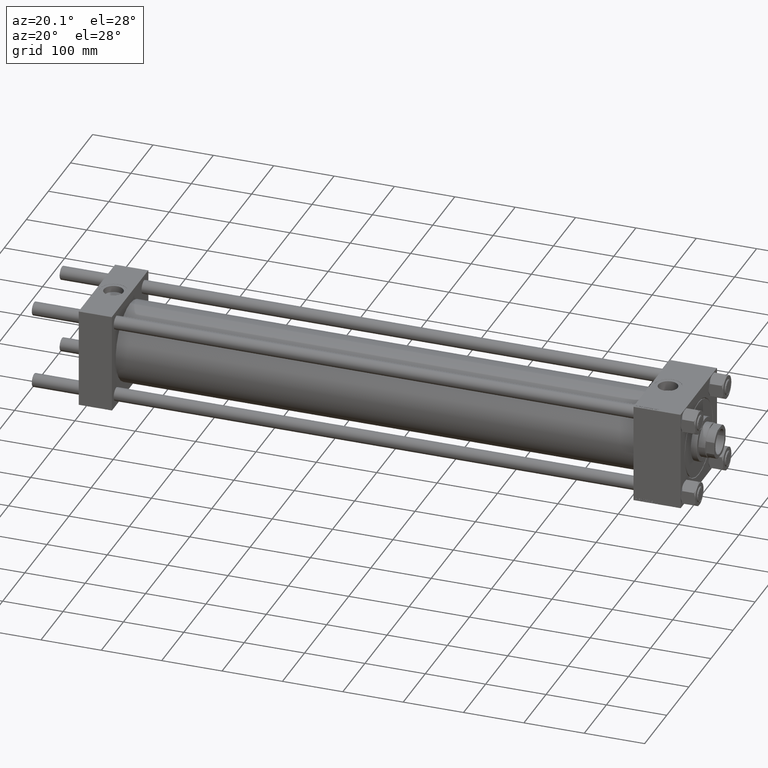
[diagram: clean part render]
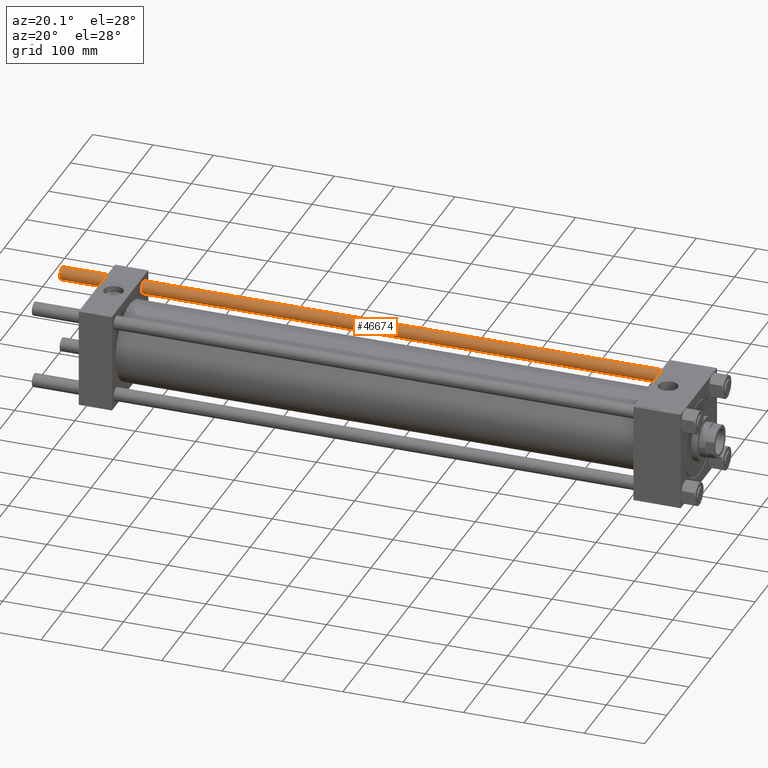
[diagram: same view with one face highlighted and labeled with its STEP entity id]
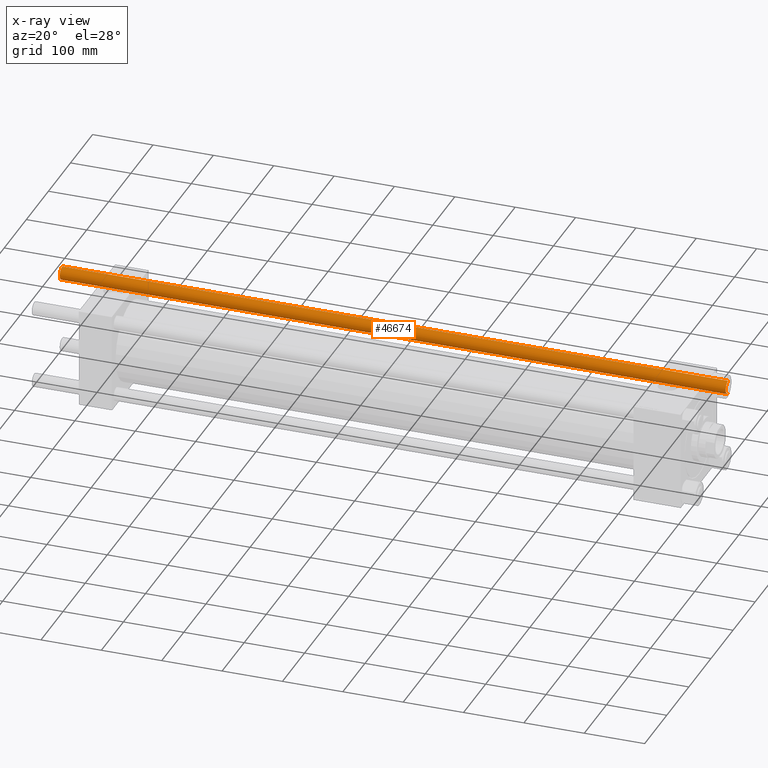
[diagram: x-ray of the same camera — body ghosted, the highlighted face saturated]
A machine part, auxiliary view. The second image highlights one B-rep face of the part: STEP entity #46674.
The next image is the same camera in x-ray: the body ghosted, the highlighted face saturated — about 0% of this face is hidden behind the body in this view.
In plain terms, the highlighted cylindrical surface (edge-blend (fillet) strip) has radius 11 mm, axis along (-1, -0, -0).
Its self-contained STEP definition (entity closure, byte-faithful):
#329 = CARTESIAN_POINT ( 'NONE',  ( 11.00000000000000000, 1.347111479062088405E-15, 1104.000000000000000 ) ) ;
#1323 = VECTOR ( 'NONE', #32373, 1000.000000000000000 ) ;
#4195 = CARTESIAN_POINT ( 'NONE',  ( 0.000000000000000000, 0.000000000000000000, 1104.000000000000000 ) ) ;
#4700 = CYLINDRICAL_SURFACE ( 'NONE', #31680, 11.00000000000000000 ) ;
#4829 = EDGE_CURVE ( 'NONE', #24118, #30030, #40218, .T. ) ;
#5322 = CARTESIAN_POINT ( 'NONE',  ( -11.00000000000000000, 0.000000000000000000, 0.5000000000001669775 ) ) ;
#7082 = ORIENTED_EDGE ( 'NONE', *, *, #27560, .F. ) ;
#7870 = EDGE_CURVE ( 'NONE', #30030, #38089, #47915, .T. ) ;
#9826 = ORIENTED_EDGE ( 'NONE', *, *, #34828, .T. ) ;
#11694 = ORIENTED_EDGE ( 'NONE', *, *, #7870, .T. ) ;
#13754 = CARTESIAN_POINT ( 'NONE',  ( -11.00000000000000000, 0.000000000000000000, 1104.000000000000000 ) ) ;
#13931 = VERTEX_POINT ( 'NONE', #42921 ) ;
#17015 = DIRECTION ( 'NONE',  ( 0.000000000000000000, 0.000000000000000000, -1.000000000000000000 ) ) ;
#18985 = CARTESIAN_POINT ( 'NONE',  ( -11.00000000000000000, 0.000000000000000000, 1103.500000000000455 ) ) ;
#22696 = VECTOR ( 'NONE', #45034, 1000.000000000000000 ) ;
#24118 = VERTEX_POINT ( 'NONE', #18985 ) ;
#24549 = CARTESIAN_POINT ( 'NONE',  ( 11.00000000000000000, 1.347111479062088405E-15, 0.5000000000001669775 ) ) ;
#27560 = EDGE_CURVE ( 'NONE', #13931, #38089, #40003, .T. ) ;
#27843 = FACE_OUTER_BOUND ( 'NONE', #33377, .T. ) ;
#30030 = VERTEX_POINT ( 'NONE', #5322 ) ;
#30601 = CARTESIAN_POINT ( 'NONE',  ( 0.000000000000000000, 0.000000000000000000, 0.5000000000001669775 ) ) ;
#31668 = AXIS2_PLACEMENT_3D ( 'NONE', #30601, #42544, #42050 ) ;
#31680 = AXIS2_PLACEMENT_3D ( 'NONE', #4195, #46424, #35459 ) ;
#31776 = CARTESIAN_POINT ( 'NONE',  ( 0.000000000000000000, 0.000000000000000000, 1103.500000000000455 ) ) ;
#32373 = DIRECTION ( 'NONE',  ( -0.000000000000000000, -0.000000000000000000, -1.000000000000000000 ) ) ;
#32531 = DIRECTION ( 'NONE',  ( 1.000000000000000000, 0.000000000000000000, 0.000000000000000000 ) ) ;
#33377 = EDGE_LOOP ( 'NONE', ( #7082, #9826, #49866, #11694 ) ) ;
#34828 = EDGE_CURVE ( 'NONE', #13931, #24118, #37050, .T. ) ;
#35459 = DIRECTION ( 'NONE',  ( -1.000000000000000000, 0.000000000000000000, 0.000000000000000000 ) ) ;
#37050 = CIRCLE ( 'NONE', #39522, 11.00000000000000000 ) ;
#38089 = VERTEX_POINT ( 'NONE', #24549 ) ;
#39522 = AXIS2_PLACEMENT_3D ( 'NONE', #31776, #17015, #32531 ) ;
#40003 = LINE ( 'NONE', #329, #1323 ) ;
#40218 = LINE ( 'NONE', #13754, #22696 ) ;
#42050 = DIRECTION ( 'NONE',  ( 1.000000000000000000, 0.000000000000000000, 0.000000000000000000 ) ) ;
#42544 = DIRECTION ( 'NONE',  ( -0.000000000000000000, -0.000000000000000000, 1.000000000000000000 ) ) ;
#42921 = CARTESIAN_POINT ( 'NONE',  ( 11.00000000000000000, 1.347111479062088405E-15, 1103.500000000000455 ) ) ;
#45034 = DIRECTION ( 'NONE',  ( -0.000000000000000000, -0.000000000000000000, -1.000000000000000000 ) ) ;
#46424 = DIRECTION ( 'NONE',  ( -0.000000000000000000, -0.000000000000000000, -1.000000000000000000 ) ) ;
#46674 = ADVANCED_FACE ( 'NONE', ( #27843 ), #4700, .T. ) ;
#47915 = CIRCLE ( 'NONE', #31668, 11.00000000000000000 ) ;
#49866 = ORIENTED_EDGE ( 'NONE', *, *, #4829, .T. ) ;